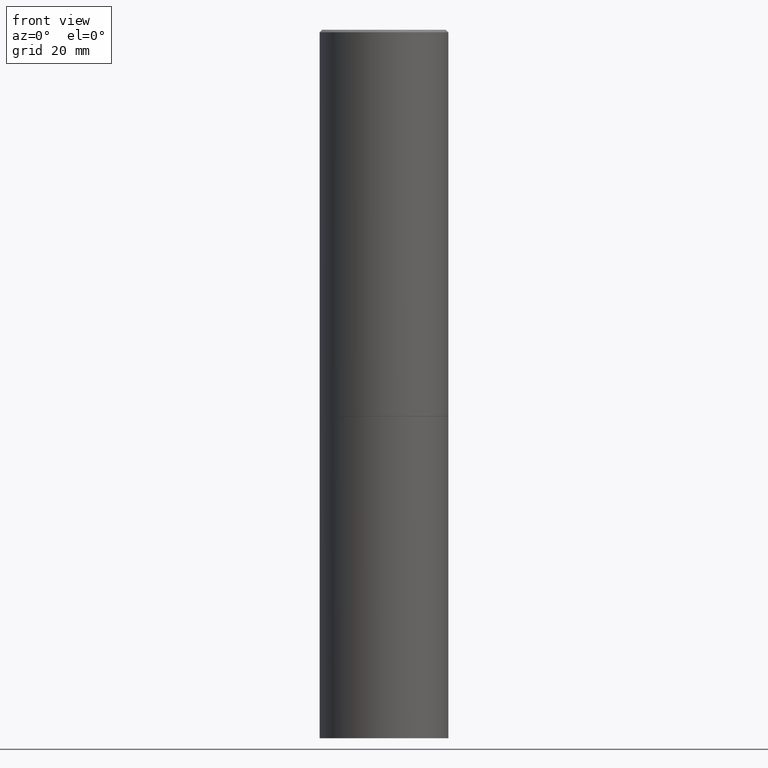
[diagram: clean part render]
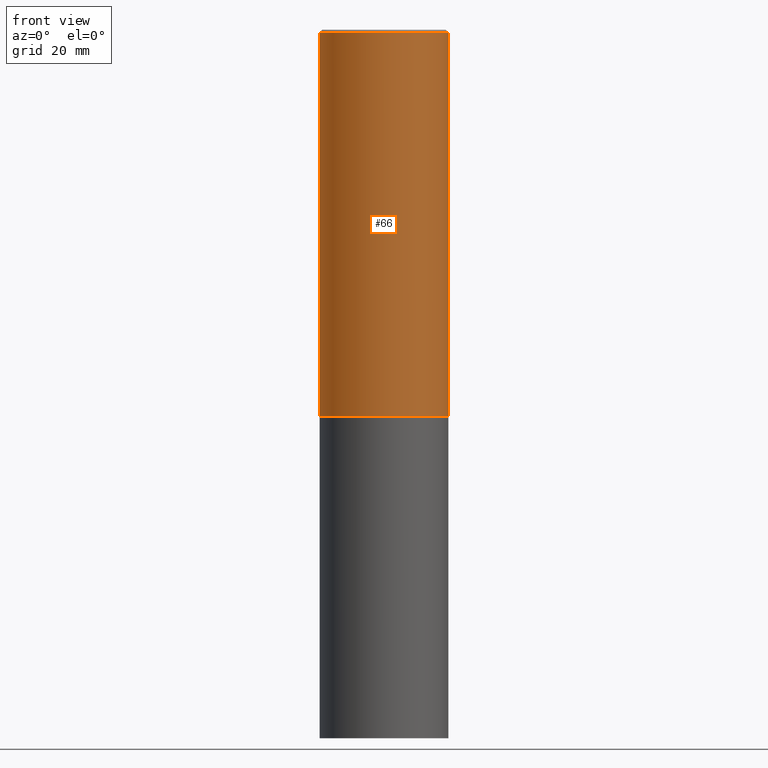
[diagram: same view with one face highlighted and labeled with its STEP entity id]
A machine part, front view. The second image highlights one B-rep face of the part: STEP entity #66.
In plain terms, the highlighted cylindrical surface (partial cylindrical patch) has radius 12.7 mm, axis along (-0, 0, 1).
Its self-contained STEP definition (entity closure, byte-faithful):
#5 = EDGE_CURVE ( 'NONE', #313, #55, #286, .T. ) ;
#26 = ORIENTED_EDGE ( 'NONE', *, *, #310, .T. ) ;
#27 = CARTESIAN_POINT ( 'NONE',  ( -0.4999999999999998335, 3.552713678800499746E-15, -2.459467545127452330E-29 ) ) ;
#28 = EDGE_LOOP ( 'NONE', ( #318, #26, #116, #197 ) ) ;
#45 = DIRECTION ( 'NONE',  ( 1.000000000000000000, -6.982962677686266711E-15, 0.000000000000000000 ) ) ;
#54 = DIRECTION ( 'NONE',  ( -2.445468806185136877E-29, 3.491481338843145188E-15, 1.000000000000000000 ) ) ;
#55 = VERTEX_POINT ( 'NONE', #272 ) ;
#58 = CARTESIAN_POINT ( 'NONE',  ( -0.4999999999999997224, 3.421651712066268085E-15, -0.02000000000000013572 ) ) ;
#66 = ADVANCED_FACE ( 'NONE', ( #365 ), #163, .T. ) ;
#76 = DIRECTION ( 'NONE',  ( -2.445468806185136597E-29, 3.491481338843145583E-15, 1.000000000000000000 ) ) ;
#77 = AXIS2_PLACEMENT_3D ( 'NONE', #82, #330, #198 ) ;
#82 = CARTESIAN_POINT ( 'NONE',  ( 0.000000000000000000, 0.000000000000000000, 0.000000000000000000 ) ) ;
#96 = CARTESIAN_POINT ( 'NONE',  ( 0.4999999999999998335, -3.491481338843132566E-15, 2.438088387897967336E-29 ) ) ;
#101 = VECTOR ( 'NONE', #122, 39.37007874015748143 ) ;
#111 = VERTEX_POINT ( 'NONE', #334 ) ;
#116 = ORIENTED_EDGE ( 'NONE', *, *, #329, .T. ) ;
#122 = DIRECTION ( 'NONE',  ( -2.445468806185136877E-29, 3.491481338843145188E-15, 1.000000000000000000 ) ) ;
#148 = LINE ( 'NONE', #27, #101 ) ;
#163 = CYLINDRICAL_SURFACE ( 'NONE', #77, 0.4999999999999998335 ) ;
#183 = DIRECTION ( 'NONE',  ( -2.445468806185136597E-29, 3.491481338843145583E-15, 1.000000000000000000 ) ) ;
#197 = ORIENTED_EDGE ( 'NONE', *, *, #5, .F. ) ;
#198 = DIRECTION ( 'NONE',  ( 1.000000000000000000, -6.982962677686267499E-15, 4.876176775795936353E-29 ) ) ;
#201 = EDGE_CURVE ( 'NONE', #111, #313, #148, .T. ) ;
#218 = CARTESIAN_POINT ( 'NONE',  ( 4.890937612370306439E-31, -6.982962677686338448E-17, -0.02000000000000013572 ) ) ;
#235 = CARTESIAN_POINT ( 'NONE',  ( 7.333960949749226429E-29, -1.047095253519059492E-14, -2.999000000000000554 ) ) ;
#272 = CARTESIAN_POINT ( 'NONE',  ( 0.4999999999999997224, -3.500078625662627502E-15, -0.02000000000000013572 ) ) ;
#275 = CARTESIAN_POINT ( 'NONE',  ( 0.5000000000000000000, -1.396243387403372828E-14, -2.999000000000000554 ) ) ;
#286 = CIRCLE ( 'NONE', #327, 0.4999999999999997224 ) ;
#290 = VERTEX_POINT ( 'NONE', #275 ) ;
#302 = CIRCLE ( 'NONE', #308, 0.5000000000000000000 ) ;
#308 = AXIS2_PLACEMENT_3D ( 'NONE', #235, #183, #341 ) ;
#310 = EDGE_CURVE ( 'NONE', #111, #290, #302, .T. ) ;
#313 = VERTEX_POINT ( 'NONE', #58 ) ;
#318 = ORIENTED_EDGE ( 'NONE', *, *, #201, .F. ) ;
#327 = AXIS2_PLACEMENT_3D ( 'NONE', #218, #76, #45 ) ;
#329 = EDGE_CURVE ( 'NONE', #290, #55, #344, .T. ) ;
#330 = DIRECTION ( 'NONE',  ( -2.445468806185136597E-29, 3.491481338843145583E-15, 1.000000000000000000 ) ) ;
#333 = VECTOR ( 'NONE', #54, 39.37007874015748143 ) ;
#334 = CARTESIAN_POINT ( 'NONE',  ( -0.5000000000000000000, -1.717677402183226998E-15, -2.999000000000000554 ) ) ;
#341 = DIRECTION ( 'NONE',  ( 1.000000000000000000, -6.982962677686266711E-15, 0.000000000000000000 ) ) ;
#344 = LINE ( 'NONE', #96, #333 ) ;
#365 = FACE_OUTER_BOUND ( 'NONE', #28, .T. ) ;